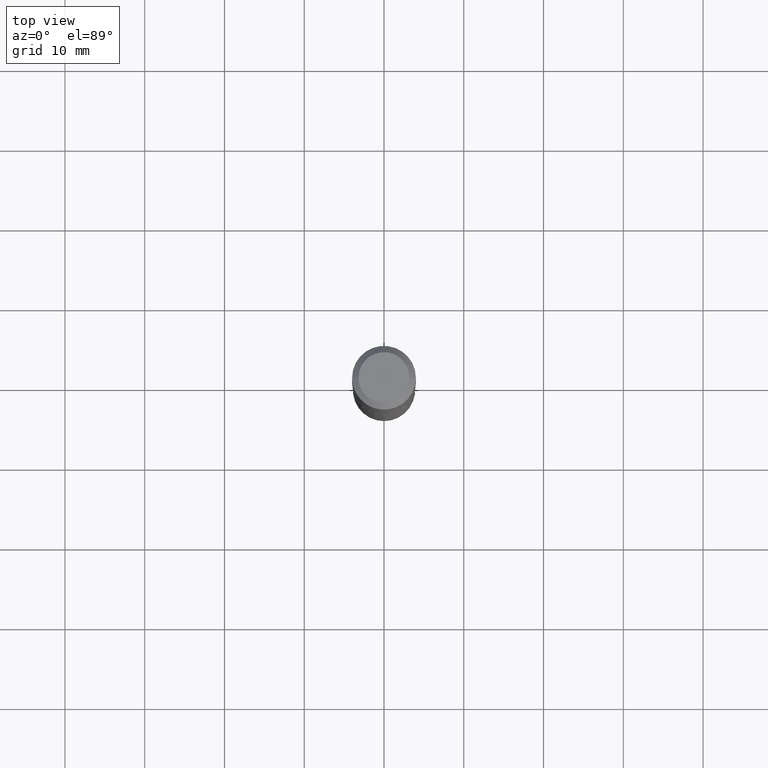
[diagram: clean part render]
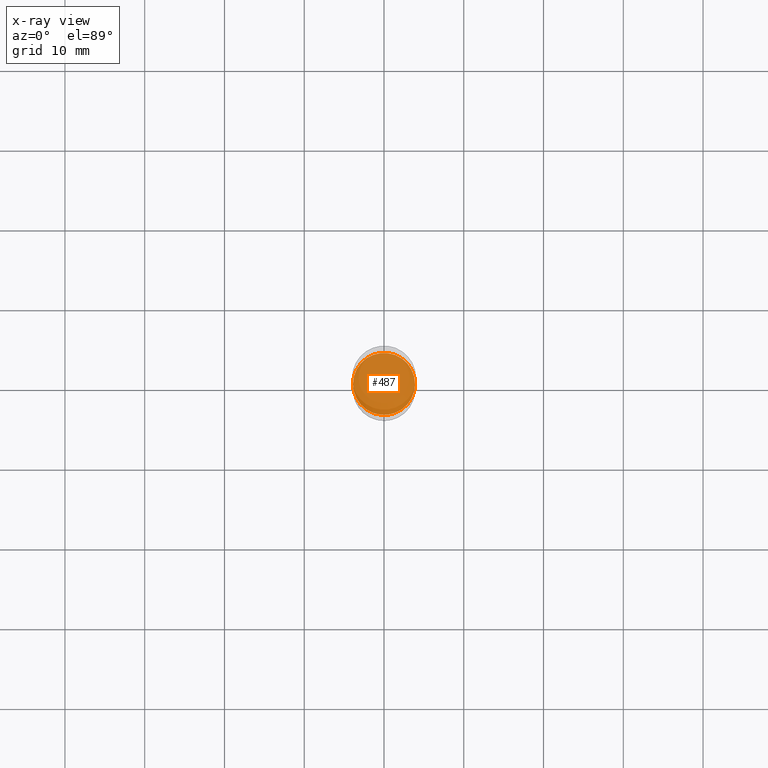
[diagram: x-ray — body ghosted, one internal face saturated and labeled with its STEP entity id]
A machine part, top view, then the same camera in x-ray: the body is ghosted and one INTERNAL B-rep face — a face not visible from any outside direction — is saturated and labeled: STEP entity #487.
In plain terms, the highlighted planar face has unit normal (-0, 0, 1).
Its self-contained STEP definition (entity closure, byte-faithful):
#6 = CARTESIAN_POINT ( 'NONE',  ( -0.1530499999999999916, -5.205704265947015077E-15, -1.803200000000000136 ) ) ;
#32 = EDGE_CURVE ( 'NONE', #442, #211, #304, .T. ) ;
#58 = DIRECTION ( 'NONE',  ( 1.000000000000000000, -6.982962677686265922E-15, 4.876176775795935793E-29 ) ) ;
#87 = EDGE_LOOP ( 'NONE', ( #348, #294 ) ) ;
#99 = AXIS2_PLACEMENT_3D ( 'NONE', #476, #178, #58 ) ;
#124 = CARTESIAN_POINT ( 'NONE',  ( 4.409669351313038346E-29, -6.295839150201959750E-15, -1.803200000000000136 ) ) ;
#125 = DIRECTION ( 'NONE',  ( 1.000000000000000000, -6.982962677686265922E-15, 0.000000000000000000 ) ) ;
#172 = DIRECTION ( 'NONE',  ( -2.445468806185136597E-29, 3.491481338843145583E-15, 1.000000000000000000 ) ) ;
#178 = DIRECTION ( 'NONE',  ( -2.438088387897960049E-29, 3.491481338843145188E-15, 1.000000000000000000 ) ) ;
#209 = CARTESIAN_POINT ( 'NONE',  ( 4.409669351313038346E-29, -6.295839150201959750E-15, -1.803200000000000136 ) ) ;
#211 = VERTEX_POINT ( 'NONE', #335 ) ;
#249 = EDGE_CURVE ( 'NONE', #211, #442, #350, .T. ) ;
#294 = ORIENTED_EDGE ( 'NONE', *, *, #32, .F. ) ;
#304 = CIRCLE ( 'NONE', #447, 0.1530499999999999916 ) ;
#335 = CARTESIAN_POINT ( 'NONE',  ( 0.1530499999999999916, -7.364581588021842889E-15, -1.803200000000000136 ) ) ;
#348 = ORIENTED_EDGE ( 'NONE', *, *, #249, .F. ) ;
#350 = CIRCLE ( 'NONE', #402, 0.1530499999999999916 ) ;
#361 = DIRECTION ( 'NONE',  ( 1.000000000000000000, -6.982962677686265922E-15, 0.000000000000000000 ) ) ;
#392 = PLANE ( 'NONE',  #99 ) ;
#398 = DIRECTION ( 'NONE',  ( -2.445468806185136597E-29, 3.491481338843145583E-15, 1.000000000000000000 ) ) ;
#402 = AXIS2_PLACEMENT_3D ( 'NONE', #124, #398, #361 ) ;
#442 = VERTEX_POINT ( 'NONE', #6 ) ;
#447 = AXIS2_PLACEMENT_3D ( 'NONE', #209, #172, #125 ) ;
#459 = FACE_OUTER_BOUND ( 'NONE', #87, .T. ) ;
#476 = CARTESIAN_POINT ( 'NONE',  ( 4.409669351313038346E-29, -6.295839150201959750E-15, -1.803200000000000136 ) ) ;
#487 = ADVANCED_FACE ( 'NONE', ( #459 ), #392, .F. ) ;